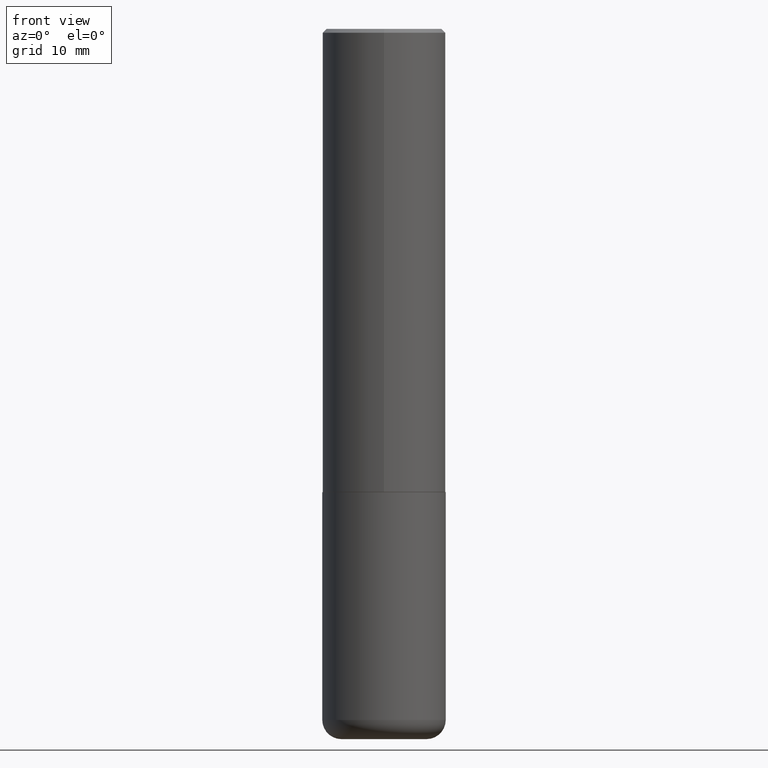
[diagram: clean part render]
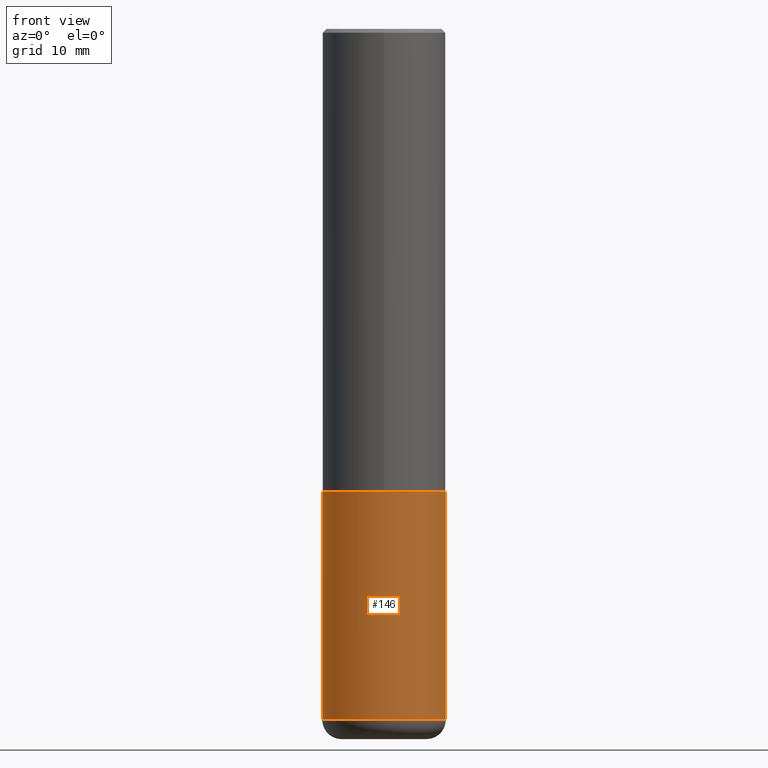
[diagram: same view with one face highlighted and labeled with its STEP entity id]
A machine part, front view. The second image highlights one B-rep face of the part: STEP entity #146.
In plain terms, the highlighted cylindrical surface (partial cylindrical patch) has radius 7.9997 mm, axis along (-0, 0, 1).
Its self-contained STEP definition (entity closure, byte-faithful):
#24 = DIRECTION ( 'NONE',  ( 1.000000000000000000, -6.982962677686269866E-15, 0.000000000000000000 ) ) ;
#27 = EDGE_CURVE ( 'NONE', #176, #119, #271, .T. ) ;
#53 = AXIS2_PLACEMENT_3D ( 'NONE', #311, #243, #216 ) ;
#66 = LINE ( 'NONE', #323, #319 ) ;
#72 = VERTEX_POINT ( 'NONE', #206 ) ;
#88 = CARTESIAN_POINT ( 'NONE',  ( 8.616853885473946211E-29, -1.230258364554770589E-14, -3.523599999999999621 ) ) ;
#118 = CIRCLE ( 'NONE', #255, 0.3149500000000000077 ) ;
#119 = VERTEX_POINT ( 'NONE', #173 ) ;
#137 = DIRECTION ( 'NONE',  ( 1.000000000000000000, -6.982962677686266711E-15, 0.000000000000000000 ) ) ;
#139 = CARTESIAN_POINT ( 'NONE',  ( -0.3149500000000000077, -8.037226085805055984E-15, -2.362199999999999633 ) ) ;
#142 = CARTESIAN_POINT ( 'NONE',  ( 0.3149499999999999522, -1.450186774088499734E-14, -3.523599999999999621 ) ) ;
#146 = ADVANCED_FACE ( 'NONE', ( #147 ), #411, .T. ) ;
#147 = FACE_OUTER_BOUND ( 'NONE', #186, .T. ) ;
#150 = DIRECTION ( 'NONE',  ( -2.445468806185136877E-29, 3.491481338843145188E-15, 1.000000000000000000 ) ) ;
#173 = CARTESIAN_POINT ( 'NONE',  ( 0.3149500000000000077, -1.044686131395256792E-14, -2.362199999999999633 ) ) ;
#175 = DIRECTION ( 'NONE',  ( -2.445468806185136597E-29, 3.491481338843145583E-15, 1.000000000000000000 ) ) ;
#176 = VERTEX_POINT ( 'NONE', #139 ) ;
#186 = EDGE_LOOP ( 'NONE', ( #342, #373, #378, #253 ) ) ;
#194 = LINE ( 'NONE', #291, #272 ) ;
#196 = DIRECTION ( 'NONE',  ( -2.445468806185136597E-29, 3.491481338843145583E-15, 1.000000000000000000 ) ) ;
#206 = CARTESIAN_POINT ( 'NONE',  ( -0.3149499999999999522, -1.006472929927126990E-14, -3.523599999999999621 ) ) ;
#216 = DIRECTION ( 'NONE',  ( 1.000000000000000000, -6.982962677686266711E-15, 4.876176775795936353E-29 ) ) ;
#234 = EDGE_CURVE ( 'NONE', #72, #284, #118, .T. ) ;
#243 = DIRECTION ( 'NONE',  ( -2.445468806185136597E-29, 3.491481338843145583E-15, 1.000000000000000000 ) ) ;
#253 = ORIENTED_EDGE ( 'NONE', *, *, #27, .F. ) ;
#255 = AXIS2_PLACEMENT_3D ( 'NONE', #88, #175, #24 ) ;
#271 = CIRCLE ( 'NONE', #365, 0.3149500000000000077 ) ;
#272 = VECTOR ( 'NONE', #390, 39.37007874015748143 ) ;
#284 = VERTEX_POINT ( 'NONE', #142 ) ;
#291 = CARTESIAN_POINT ( 'NONE',  ( 0.3149500000000000077, -2.199284095337289871E-15, 1.535751875536930130E-29 ) ) ;
#295 = CARTESIAN_POINT ( 'NONE',  ( 5.776686413970529753E-29, -8.247577218615278049E-15, -2.362199999999999633 ) ) ;
#311 = CARTESIAN_POINT ( 'NONE',  ( 0.000000000000000000, 0.000000000000000000, 0.000000000000000000 ) ) ;
#319 = VECTOR ( 'NONE', #150, 39.37007874015748143 ) ;
#323 = CARTESIAN_POINT ( 'NONE',  ( -0.3149500000000000077, 2.237854346276435590E-15, -1.549218606675782676E-29 ) ) ;
#342 = ORIENTED_EDGE ( 'NONE', *, *, #374, .F. ) ;
#365 = AXIS2_PLACEMENT_3D ( 'NONE', #295, #196, #137 ) ;
#373 = ORIENTED_EDGE ( 'NONE', *, *, #234, .T. ) ;
#374 = EDGE_CURVE ( 'NONE', #72, #176, #66, .T. ) ;
#378 = ORIENTED_EDGE ( 'NONE', *, *, #406, .T. ) ;
#390 = DIRECTION ( 'NONE',  ( -2.445468806185136877E-29, 3.491481338843145188E-15, 1.000000000000000000 ) ) ;
#406 = EDGE_CURVE ( 'NONE', #284, #119, #194, .T. ) ;
#411 = CYLINDRICAL_SURFACE ( 'NONE', #53, 0.3149500000000000077 ) ;